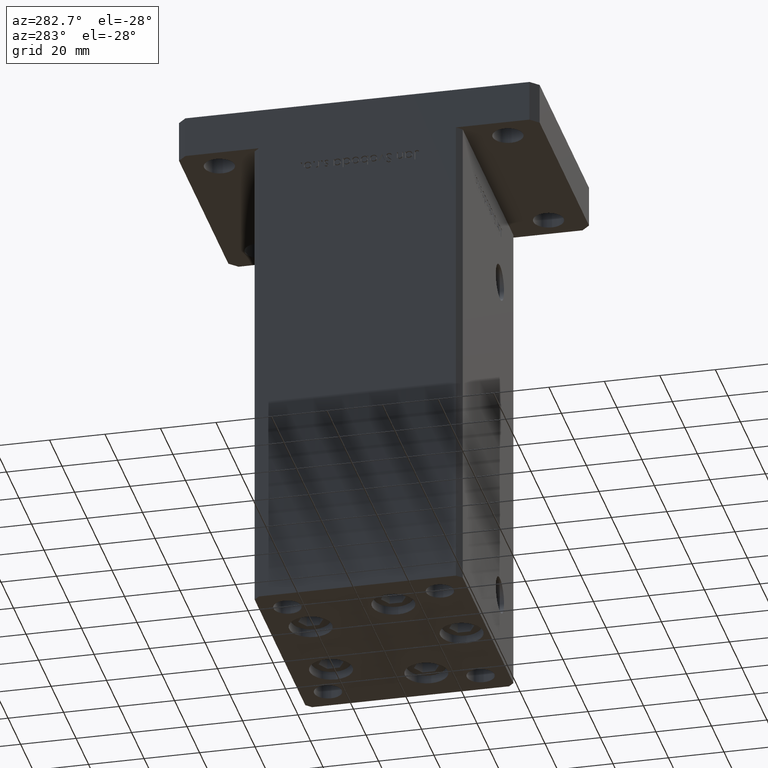
[diagram: clean part render]
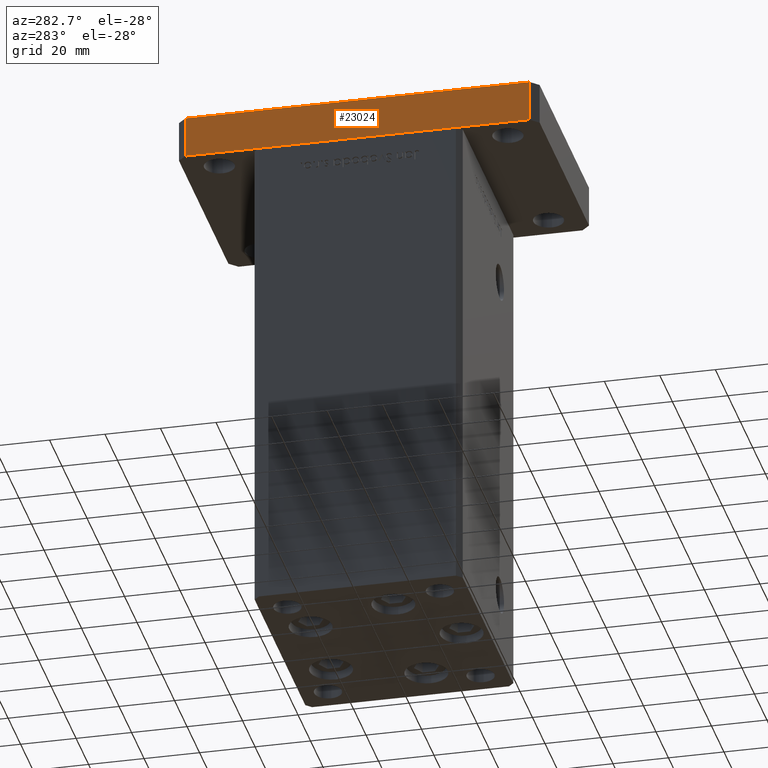
[diagram: same view with one face highlighted and labeled with its STEP entity id]
A machine part, auxiliary view. The second image highlights one B-rep face of the part: STEP entity #23024.
In plain terms, the highlighted planar face has unit normal (1, 0, 0).
Its self-contained STEP definition (entity closure, byte-faithful):
#1821 = LINE ( 'NONE', #13517, #30563 ) ;
#1933 = VECTOR ( 'NONE', #36385, 1000.000000000000000 ) ;
#7031 = CARTESIAN_POINT ( 'NONE',  ( -42.50000000000002132, 62.00000000000000711, 15.00000000000000000 ) ) ;
#8868 = CARTESIAN_POINT ( 'NONE',  ( -42.50000000000002132, 62.00000000000000711, 15.00000000000000000 ) ) ;
#10356 = CARTESIAN_POINT ( 'NONE',  ( -42.50000000000002132, 62.00000000000000711, 15.00000000000000000 ) ) ;
#11190 = ORIENTED_EDGE ( 'NONE', *, *, #35910, .T. ) ;
#11655 = VECTOR ( 'NONE', #42162, 1000.000000000000000 ) ;
#13517 = CARTESIAN_POINT ( 'NONE',  ( -42.50000000000002132, 62.00000000000000711, 15.00000000000000000 ) ) ;
#13838 = CARTESIAN_POINT ( 'NONE',  ( -42.49999999999999289, -62.00000000000001421, 15.00000000000000000 ) ) ;
#13875 = EDGE_CURVE ( 'NONE', #29390, #19660, #44218, .T. ) ;
#14428 = FACE_OUTER_BOUND ( 'NONE', #16910, .T. ) ;
#16910 = EDGE_LOOP ( 'NONE', ( #25385, #26897, #46996, #11190 ) ) ;
#19592 = VECTOR ( 'NONE', #39090, 1000.000000000000000 ) ;
#19660 = VERTEX_POINT ( 'NONE', #52304 ) ;
#23024 = ADVANCED_FACE ( 'NONE', ( #14428 ), #30993, .F. ) ;
#23228 = CARTESIAN_POINT ( 'NONE',  ( -42.49999999999999289, -62.00000000000001421, 0.000000000000000000 ) ) ;
#23316 = EDGE_CURVE ( 'NONE', #19660, #42370, #51012, .T. ) ;
#25385 = ORIENTED_EDGE ( 'NONE', *, *, #40517, .T. ) ;
#26787 = DIRECTION ( 'NONE',  ( -0.000000000000000000, -0.000000000000000000, -1.000000000000000000 ) ) ;
#26897 = ORIENTED_EDGE ( 'NONE', *, *, #23316, .F. ) ;
#28256 = VERTEX_POINT ( 'NONE', #40066 ) ;
#29390 = VERTEX_POINT ( 'NONE', #8868 ) ;
#30563 = VECTOR ( 'NONE', #26787, 1000.000000000000000 ) ;
#30993 = PLANE ( 'NONE',  #45658 ) ;
#32943 = LINE ( 'NONE', #49486, #11655 ) ;
#35910 = EDGE_CURVE ( 'NONE', #29390, #28256, #1821, .T. ) ;
#36385 = DIRECTION ( 'NONE',  ( 2.238352872228137677E-16, -1.000000000000000000, 0.000000000000000000 ) ) ;
#36439 = DIRECTION ( 'NONE',  ( -2.238352872228137677E-16, 1.000000000000000000, 0.000000000000000000 ) ) ;
#39090 = DIRECTION ( 'NONE',  ( -0.000000000000000000, -0.000000000000000000, -1.000000000000000000 ) ) ;
#40066 = CARTESIAN_POINT ( 'NONE',  ( -42.50000000000002132, 62.00000000000000711, 0.000000000000000000 ) ) ;
#40517 = EDGE_CURVE ( 'NONE', #28256, #42370, #32943, .T. ) ;
#42162 = DIRECTION ( 'NONE',  ( 2.238352872228137677E-16, -1.000000000000000000, 0.000000000000000000 ) ) ;
#42370 = VERTEX_POINT ( 'NONE', #23228 ) ;
#44218 = LINE ( 'NONE', #7031, #1933 ) ;
#45658 = AXIS2_PLACEMENT_3D ( 'NONE', #10356, #52137, #36439 ) ;
#46996 = ORIENTED_EDGE ( 'NONE', *, *, #13875, .F. ) ;
#49486 = CARTESIAN_POINT ( 'NONE',  ( -42.50000000000002132, 62.00000000000000711, 0.000000000000000000 ) ) ;
#51012 = LINE ( 'NONE', #13838, #19592 ) ;
#52137 = DIRECTION ( 'NONE',  ( 1.000000000000000000, 2.238352872228137677E-16, -0.000000000000000000 ) ) ;
#52304 = CARTESIAN_POINT ( 'NONE',  ( -42.49999999999999289, -62.00000000000001421, 15.00000000000000000 ) ) ;